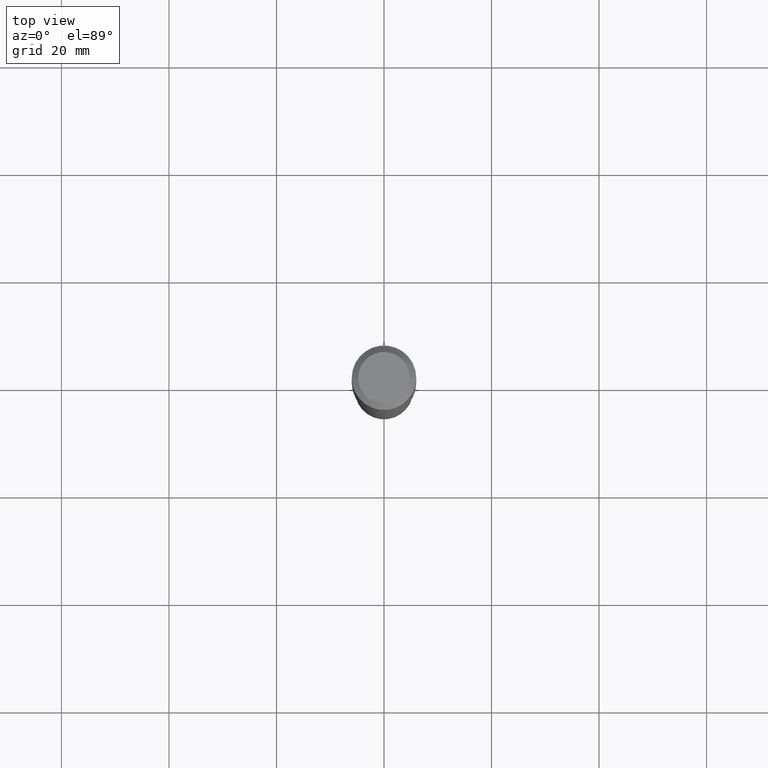
[diagram: clean part render]
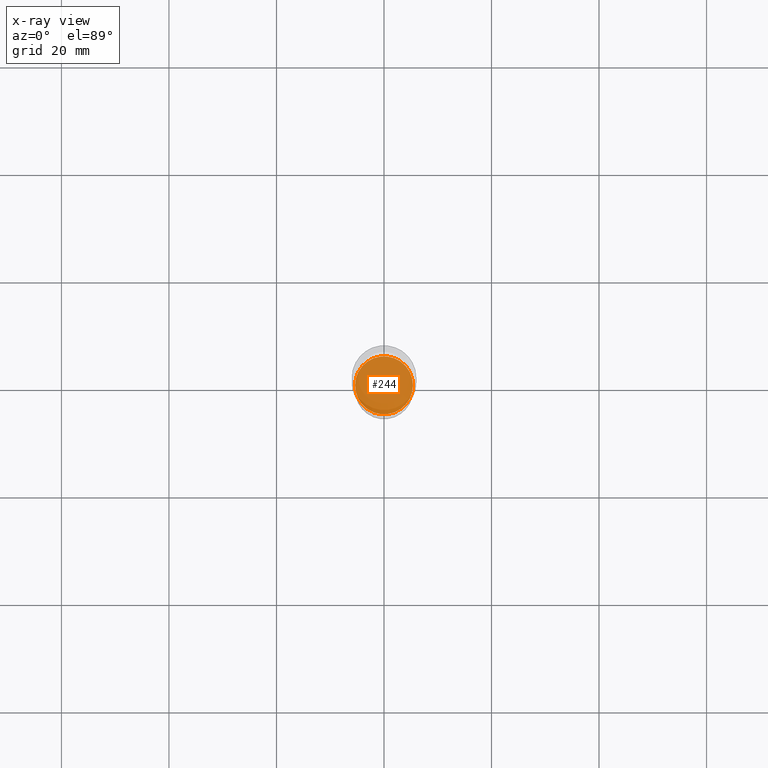
[diagram: x-ray — body ghosted, one internal face saturated and labeled with its STEP entity id]
A machine part, top view, then the same camera in x-ray: the body is ghosted and one INTERNAL B-rep face — a face not visible from any outside direction — is saturated and labeled: STEP entity #244.
In plain terms, the highlighted planar face has unit normal (-0, 0, 1).
Its self-contained STEP definition (entity closure, byte-faithful):
#3 = AXIS2_PLACEMENT_3D ( 'NONE', #318, #273, #366 ) ;
#9 = DIRECTION ( 'NONE',  ( 1.000000000000000000, -6.982962677686261977E-15, 0.000000000000000000 ) ) ;
#18 = CIRCLE ( 'NONE', #3, 0.2121000000000000107 ) ;
#29 = FACE_OUTER_BOUND ( 'NONE', #225, .T. ) ;
#39 = CIRCLE ( 'NONE', #136, 0.2121000000000000107 ) ;
#103 = CARTESIAN_POINT ( 'NONE',  ( 7.935546276070771530E-29, -1.132985694454601097E-14, -3.245000000000000995 ) ) ;
#106 = ORIENTED_EDGE ( 'NONE', *, *, #120, .F. ) ;
#120 = EDGE_CURVE ( 'NONE', #264, #353, #39, .T. ) ;
#136 = AXIS2_PLACEMENT_3D ( 'NONE', #456, #374, #9 ) ;
#225 = EDGE_LOOP ( 'NONE', ( #424, #106 ) ) ;
#237 = DIRECTION ( 'NONE',  ( 1.000000000000000000, -6.982962677686265922E-15, 4.876176775795935793E-29 ) ) ;
#244 = ADVANCED_FACE ( 'NONE', ( #29 ), #425, .F. ) ;
#264 = VERTEX_POINT ( 'NONE', #302 ) ;
#268 = DIRECTION ( 'NONE',  ( -2.438088387897960049E-29, 3.491481338843145188E-15, 1.000000000000000000 ) ) ;
#273 = DIRECTION ( 'NONE',  ( -2.445468806185136597E-29, 3.491481338843145583E-15, 1.000000000000000000 ) ) ;
#302 = CARTESIAN_POINT ( 'NONE',  ( -0.2121000000000000107, -9.820146574824726801E-15, -3.245000000000000995 ) ) ;
#318 = CARTESIAN_POINT ( 'NONE',  ( 7.935546276070771530E-29, -1.132985694454601097E-14, -3.245000000000000995 ) ) ;
#320 = EDGE_CURVE ( 'NONE', #353, #264, #18, .T. ) ;
#332 = CARTESIAN_POINT ( 'NONE',  ( 0.2121000000000000107, -1.281094332848326666E-14, -3.245000000000000995 ) ) ;
#353 = VERTEX_POINT ( 'NONE', #332 ) ;
#366 = DIRECTION ( 'NONE',  ( 1.000000000000000000, -6.982962677686261977E-15, 0.000000000000000000 ) ) ;
#369 = AXIS2_PLACEMENT_3D ( 'NONE', #103, #268, #237 ) ;
#374 = DIRECTION ( 'NONE',  ( -2.445468806185136597E-29, 3.491481338843145583E-15, 1.000000000000000000 ) ) ;
#424 = ORIENTED_EDGE ( 'NONE', *, *, #320, .F. ) ;
#425 = PLANE ( 'NONE',  #369 ) ;
#456 = CARTESIAN_POINT ( 'NONE',  ( 7.935546276070771530E-29, -1.132985694454601097E-14, -3.245000000000000995 ) ) ;